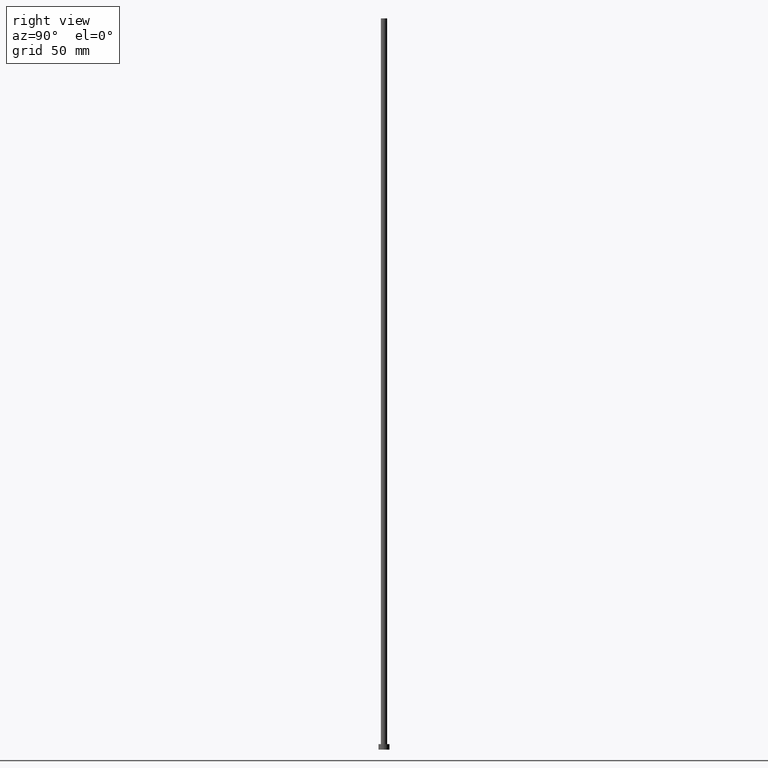
[diagram: clean part render]
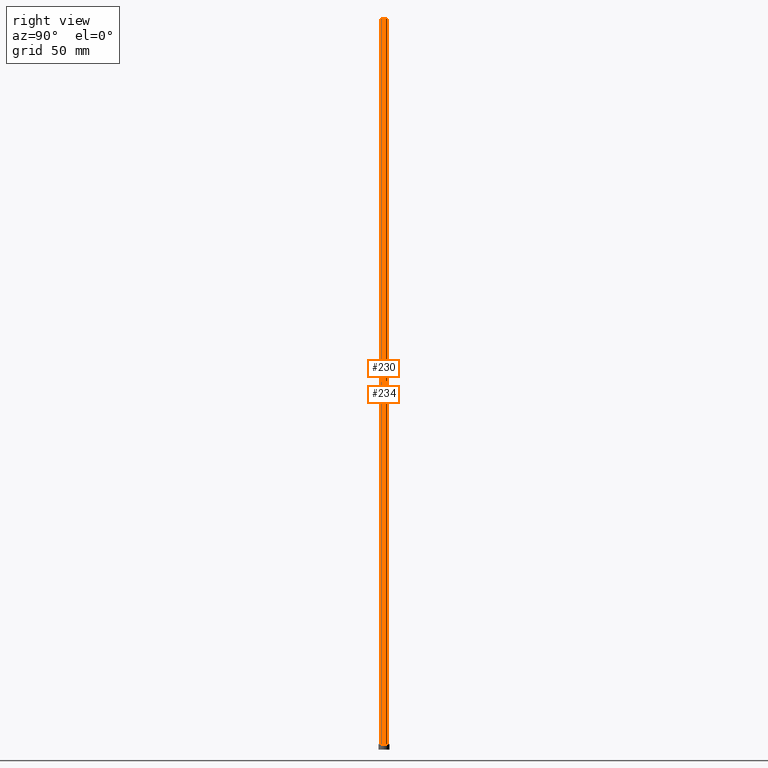
[diagram: same view with one multi-face feature highlighted, each face labeled with its STEP entity id]
A machine part, right view. The highlighted faces form ONE feature: a constant-radius fillet chain: 2 tangent blend faces with common blend radius 1.75 mm. The faces share edges in the B-rep.
Their STEP definitions:
[1] entity #234 (Cylinder):
#4 = VERTEX_POINT ( 'NONE', #240 ) ;
#11 = ORIENTED_EDGE ( 'NONE', *, *, #125, .T. ) ;
#33 = VERTEX_POINT ( 'NONE', #146 ) ;
#36 = VECTOR ( 'NONE', #175, 1000.000000000000000 ) ;
#38 = LINE ( 'NONE', #101, #36 ) ;
#53 = CIRCLE ( 'NONE', #173, 1.750000000000000000 ) ;
#58 = DIRECTION ( 'NONE',  ( 0.000000000000000000, 0.000000000000000000, 1.000000000000000000 ) ) ;
#61 = CARTESIAN_POINT ( 'NONE',  ( 1.750000000000000000, 2.143131898507868297E-16, 3.000000000000000000 ) ) ;
#78 = CARTESIAN_POINT ( 'NONE',  ( 0.000000000000000000, 0.000000000000000000, 400.0000000000000000 ) ) ;
#83 = ORIENTED_EDGE ( 'NONE', *, *, #199, .T. ) ;
#96 = CARTESIAN_POINT ( 'NONE',  ( 1.750000000000000000, 2.143131898507868297E-16, 400.0000000000000000 ) ) ;
#101 = CARTESIAN_POINT ( 'NONE',  ( -1.750000000000000000, 0.000000000000000000, 400.0000000000000000 ) ) ;
#114 = AXIS2_PLACEMENT_3D ( 'NONE', #78, #246, #233 ) ;
#119 = DIRECTION ( 'NONE',  ( -0.000000000000000000, -0.000000000000000000, -1.000000000000000000 ) ) ;
#120 = DIRECTION ( 'NONE',  ( -1.000000000000000000, 0.000000000000000000, 0.000000000000000000 ) ) ;
#125 = EDGE_CURVE ( 'NONE', #187, #33, #53, .T. ) ;
#127 = ORIENTED_EDGE ( 'NONE', *, *, #236, .F. ) ;
#133 = CARTESIAN_POINT ( 'NONE',  ( 1.750000000000000000, 2.143131898507868297E-16, 400.0000000000000000 ) ) ;
#136 = CIRCLE ( 'NONE', #114, 1.750000000000000000 ) ;
#137 = CARTESIAN_POINT ( 'NONE',  ( 0.000000000000000000, 0.000000000000000000, 3.000000000000000000 ) ) ;
#146 = CARTESIAN_POINT ( 'NONE',  ( -1.750000000000000000, 0.000000000000000000, 3.000000000000000000 ) ) ;
#153 = DIRECTION ( 'NONE',  ( -0.000000000000000000, -0.000000000000000000, -1.000000000000000000 ) ) ;
#155 = CYLINDRICAL_SURFACE ( 'NONE', #214, 1.750000000000000000 ) ;
#166 = VERTEX_POINT ( 'NONE', #96 ) ;
#173 = AXIS2_PLACEMENT_3D ( 'NONE', #137, #58, #177 ) ;
#175 = DIRECTION ( 'NONE',  ( -0.000000000000000000, -0.000000000000000000, -1.000000000000000000 ) ) ;
#177 = DIRECTION ( 'NONE',  ( 1.000000000000000000, 0.000000000000000000, 0.000000000000000000 ) ) ;
#178 = FACE_OUTER_BOUND ( 'NONE', #191, .T. ) ;
#187 = VERTEX_POINT ( 'NONE', #61 ) ;
#191 = EDGE_LOOP ( 'NONE', ( #127, #83, #11, #204 ) ) ;
#193 = EDGE_CURVE ( 'NONE', #4, #33, #38, .T. ) ;
#199 = EDGE_CURVE ( 'NONE', #166, #187, #212, .T. ) ;
#204 = ORIENTED_EDGE ( 'NONE', *, *, #193, .F. ) ;
#212 = LINE ( 'NONE', #133, #251 ) ;
#214 = AXIS2_PLACEMENT_3D ( 'NONE', #217, #119, #120 ) ;
#217 = CARTESIAN_POINT ( 'NONE',  ( 0.000000000000000000, 0.000000000000000000, 400.0000000000000000 ) ) ;
#233 = DIRECTION ( 'NONE',  ( 1.000000000000000000, 0.000000000000000000, 0.000000000000000000 ) ) ;
#234 = ADVANCED_FACE ( 'NONE', ( #178 ), #155, .T. ) ;
#236 = EDGE_CURVE ( 'NONE', #166, #4, #136, .T. ) ;
#240 = CARTESIAN_POINT ( 'NONE',  ( -1.750000000000000000, 0.000000000000000000, 400.0000000000000000 ) ) ;
#246 = DIRECTION ( 'NONE',  ( 0.000000000000000000, 0.000000000000000000, 1.000000000000000000 ) ) ;
#251 = VECTOR ( 'NONE', #153, 1000.000000000000000 ) ;
[2] entity #230 (Cylinder):
#4 = VERTEX_POINT ( 'NONE', #240 ) ;
#8 = DIRECTION ( 'NONE',  ( 1.000000000000000000, 0.000000000000000000, 0.000000000000000000 ) ) ;
#13 = DIRECTION ( 'NONE',  ( 1.000000000000000000, 0.000000000000000000, 0.000000000000000000 ) ) ;
#14 = DIRECTION ( 'NONE',  ( 0.000000000000000000, 0.000000000000000000, 1.000000000000000000 ) ) ;
#17 = DIRECTION ( 'NONE',  ( -1.000000000000000000, 0.000000000000000000, 0.000000000000000000 ) ) ;
#27 = CIRCLE ( 'NONE', #152, 1.750000000000000000 ) ;
#31 = EDGE_LOOP ( 'NONE', ( #219, #128, #202, #86 ) ) ;
#33 = VERTEX_POINT ( 'NONE', #146 ) ;
#36 = VECTOR ( 'NONE', #175, 1000.000000000000000 ) ;
#38 = LINE ( 'NONE', #101, #36 ) ;
#60 = FACE_OUTER_BOUND ( 'NONE', #31, .T. ) ;
#61 = CARTESIAN_POINT ( 'NONE',  ( 1.750000000000000000, 2.143131898507868297E-16, 3.000000000000000000 ) ) ;
#76 = CARTESIAN_POINT ( 'NONE',  ( 0.000000000000000000, 0.000000000000000000, 400.0000000000000000 ) ) ;
#84 = EDGE_CURVE ( 'NONE', #33, #187, #150, .T. ) ;
#86 = ORIENTED_EDGE ( 'NONE', *, *, #84, .T. ) ;
#96 = CARTESIAN_POINT ( 'NONE',  ( 1.750000000000000000, 2.143131898507868297E-16, 400.0000000000000000 ) ) ;
#97 = CYLINDRICAL_SURFACE ( 'NONE', #185, 1.750000000000000000 ) ;
#101 = CARTESIAN_POINT ( 'NONE',  ( -1.750000000000000000, 0.000000000000000000, 400.0000000000000000 ) ) ;
#110 = CARTESIAN_POINT ( 'NONE',  ( 0.000000000000000000, 0.000000000000000000, 3.000000000000000000 ) ) ;
#115 = DIRECTION ( 'NONE',  ( 0.000000000000000000, 0.000000000000000000, 1.000000000000000000 ) ) ;
#118 = DIRECTION ( 'NONE',  ( -0.000000000000000000, -0.000000000000000000, -1.000000000000000000 ) ) ;
#128 = ORIENTED_EDGE ( 'NONE', *, *, #210, .F. ) ;
#133 = CARTESIAN_POINT ( 'NONE',  ( 1.750000000000000000, 2.143131898507868297E-16, 400.0000000000000000 ) ) ;
#142 = AXIS2_PLACEMENT_3D ( 'NONE', #110, #115, #8 ) ;
#146 = CARTESIAN_POINT ( 'NONE',  ( -1.750000000000000000, 0.000000000000000000, 3.000000000000000000 ) ) ;
#150 = CIRCLE ( 'NONE', #142, 1.750000000000000000 ) ;
#152 = AXIS2_PLACEMENT_3D ( 'NONE', #235, #14, #13 ) ;
#153 = DIRECTION ( 'NONE',  ( -0.000000000000000000, -0.000000000000000000, -1.000000000000000000 ) ) ;
#166 = VERTEX_POINT ( 'NONE', #96 ) ;
#175 = DIRECTION ( 'NONE',  ( -0.000000000000000000, -0.000000000000000000, -1.000000000000000000 ) ) ;
#185 = AXIS2_PLACEMENT_3D ( 'NONE', #76, #118, #17 ) ;
#187 = VERTEX_POINT ( 'NONE', #61 ) ;
#193 = EDGE_CURVE ( 'NONE', #4, #33, #38, .T. ) ;
#199 = EDGE_CURVE ( 'NONE', #166, #187, #212, .T. ) ;
#202 = ORIENTED_EDGE ( 'NONE', *, *, #193, .T. ) ;
#210 = EDGE_CURVE ( 'NONE', #4, #166, #27, .T. ) ;
#212 = LINE ( 'NONE', #133, #251 ) ;
#219 = ORIENTED_EDGE ( 'NONE', *, *, #199, .F. ) ;
#230 = ADVANCED_FACE ( 'NONE', ( #60 ), #97, .T. ) ;
#235 = CARTESIAN_POINT ( 'NONE',  ( 0.000000000000000000, 0.000000000000000000, 400.0000000000000000 ) ) ;
#240 = CARTESIAN_POINT ( 'NONE',  ( -1.750000000000000000, 0.000000000000000000, 400.0000000000000000 ) ) ;
#251 = VECTOR ( 'NONE', #153, 1000.000000000000000 ) ;